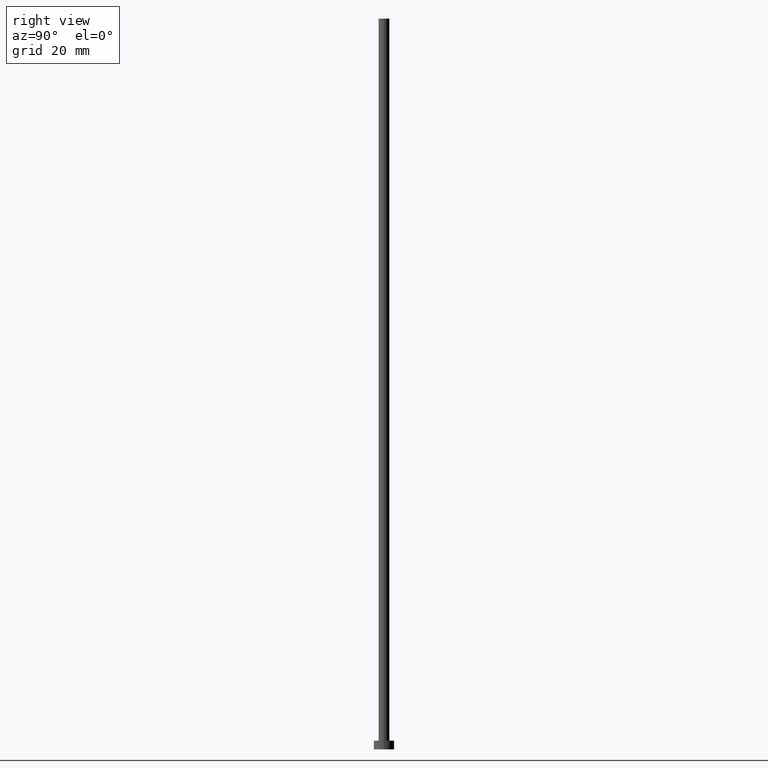
[diagram: clean part render]
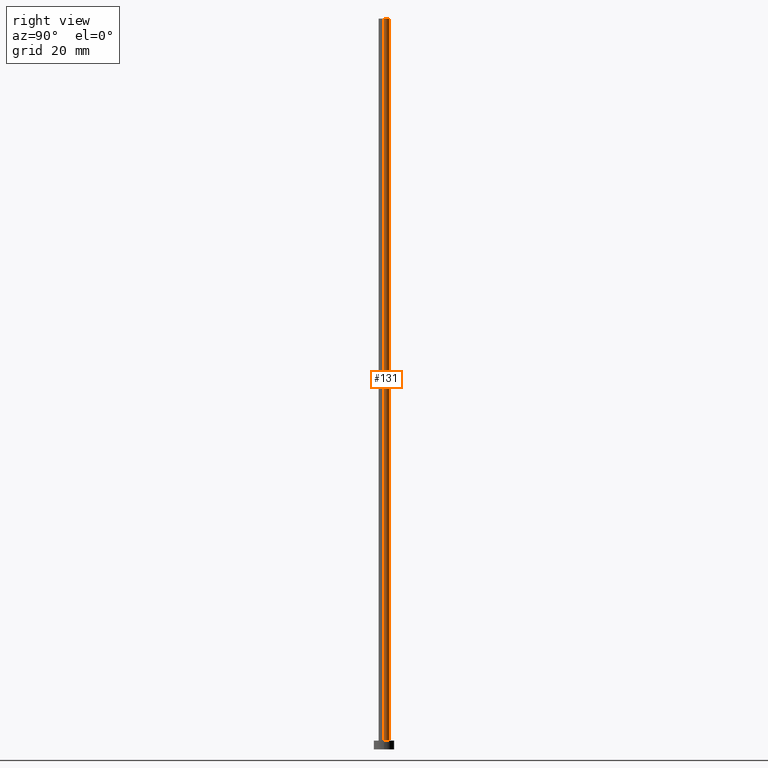
[diagram: same view with one face highlighted and labeled with its STEP entity id]
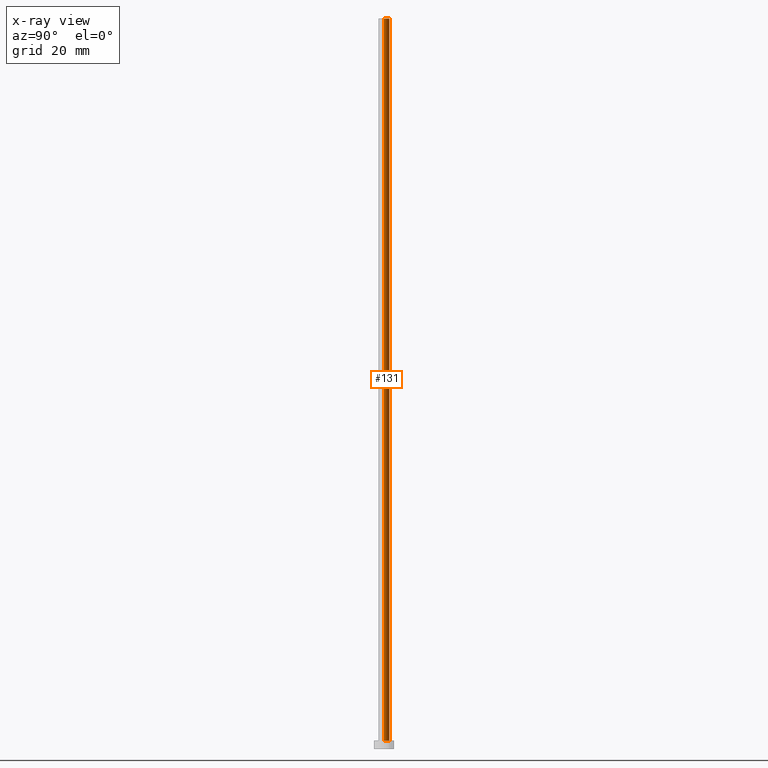
[diagram: x-ray of the same camera — body ghosted, the highlighted face saturated]
A machine part, right view. The second image highlights one B-rep face of the part: STEP entity #131.
The next image is the same camera in x-ray: the body ghosted, the highlighted face saturated — about 0% of this face is hidden behind the body in this view.
In plain terms, the highlighted cylindrical surface (edge-blend (fillet) strip) has radius 1.85 mm, axis along (-0, -0, -1).
Its self-contained STEP definition (entity closure, byte-faithful):
#2 = VERTEX_POINT ( 'NONE', #35 ) ;
#7 = VECTOR ( 'NONE', #66, 1000.000000000000000 ) ;
#9 = DIRECTION ( 'NONE',  ( -0.000000000000000000, -0.000000000000000000, -1.000000000000000000 ) ) ;
#12 = DIRECTION ( 'NONE',  ( -1.000000000000000000, 0.000000000000000000, 0.000000000000000000 ) ) ;
#18 = VERTEX_POINT ( 'NONE', #138 ) ;
#23 = EDGE_LOOP ( 'NONE', ( #38, #77, #174, #176 ) ) ;
#26 = CARTESIAN_POINT ( 'NONE',  ( 1.850000000000000089, 2.265596578422603100E-16, 250.0000000000000000 ) ) ;
#28 = CARTESIAN_POINT ( 'NONE',  ( -1.850000000000000089, 0.000000000000000000, 250.0000000000000000 ) ) ;
#29 = LINE ( 'NONE', #28, #7 ) ;
#33 = EDGE_CURVE ( 'NONE', #2, #81, #88, .T. ) ;
#35 = CARTESIAN_POINT ( 'NONE',  ( 1.850000000000000089, 2.265596578422603100E-16, 3.000000000000000000 ) ) ;
#38 = ORIENTED_EDGE ( 'NONE', *, *, #95, .F. ) ;
#47 = CARTESIAN_POINT ( 'NONE',  ( -1.850000000000000089, 0.000000000000000000, 250.0000000000000000 ) ) ;
#59 = DIRECTION ( 'NONE',  ( 0.000000000000000000, 0.000000000000000000, 1.000000000000000000 ) ) ;
#64 = FACE_OUTER_BOUND ( 'NONE', #23, .T. ) ;
#66 = DIRECTION ( 'NONE',  ( -0.000000000000000000, -0.000000000000000000, -1.000000000000000000 ) ) ;
#76 = AXIS2_PLACEMENT_3D ( 'NONE', #253, #110, #12 ) ;
#77 = ORIENTED_EDGE ( 'NONE', *, *, #185, .T. ) ;
#81 = VERTEX_POINT ( 'NONE', #157 ) ;
#83 = CARTESIAN_POINT ( 'NONE',  ( 0.000000000000000000, 0.000000000000000000, 3.000000000000000000 ) ) ;
#88 = CIRCLE ( 'NONE', #179, 1.850000000000000089 ) ;
#95 = EDGE_CURVE ( 'NONE', #18, #196, #203, .T. ) ;
#110 = DIRECTION ( 'NONE',  ( -0.000000000000000000, -0.000000000000000000, -1.000000000000000000 ) ) ;
#131 = ADVANCED_FACE ( 'NONE', ( #64 ), #249, .T. ) ;
#132 = DIRECTION ( 'NONE',  ( 1.000000000000000000, 0.000000000000000000, 0.000000000000000000 ) ) ;
#138 = CARTESIAN_POINT ( 'NONE',  ( 1.850000000000000089, 2.265596578422603100E-16, 250.0000000000000000 ) ) ;
#143 = VECTOR ( 'NONE', #9, 1000.000000000000000 ) ;
#155 = DIRECTION ( 'NONE',  ( 0.000000000000000000, 0.000000000000000000, 1.000000000000000000 ) ) ;
#157 = CARTESIAN_POINT ( 'NONE',  ( -1.850000000000000089, 0.000000000000000000, 3.000000000000000000 ) ) ;
#158 = DIRECTION ( 'NONE',  ( 1.000000000000000000, 0.000000000000000000, 0.000000000000000000 ) ) ;
#174 = ORIENTED_EDGE ( 'NONE', *, *, #33, .T. ) ;
#176 = ORIENTED_EDGE ( 'NONE', *, *, #212, .F. ) ;
#179 = AXIS2_PLACEMENT_3D ( 'NONE', #83, #155, #158 ) ;
#185 = EDGE_CURVE ( 'NONE', #18, #2, #232, .T. ) ;
#196 = VERTEX_POINT ( 'NONE', #47 ) ;
#203 = CIRCLE ( 'NONE', #236, 1.850000000000000089 ) ;
#212 = EDGE_CURVE ( 'NONE', #196, #81, #29, .T. ) ;
#232 = LINE ( 'NONE', #26, #143 ) ;
#236 = AXIS2_PLACEMENT_3D ( 'NONE', #243, #59, #132 ) ;
#243 = CARTESIAN_POINT ( 'NONE',  ( 0.000000000000000000, 0.000000000000000000, 250.0000000000000000 ) ) ;
#249 = CYLINDRICAL_SURFACE ( 'NONE', #76, 1.850000000000000089 ) ;
#253 = CARTESIAN_POINT ( 'NONE',  ( 0.000000000000000000, 0.000000000000000000, 250.0000000000000000 ) ) ;